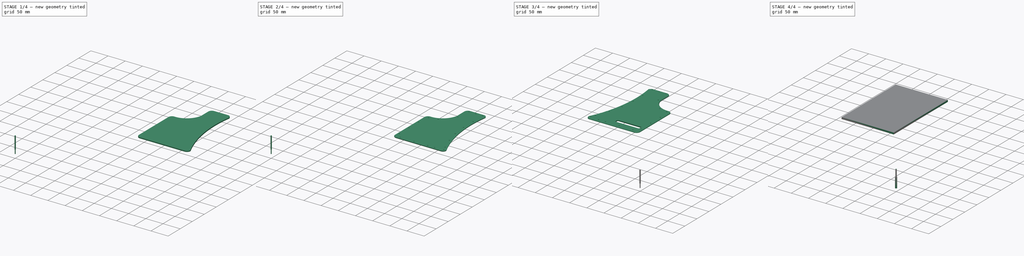
[diagram: build sequence overview — one tinted view per stage of 4, left to right]
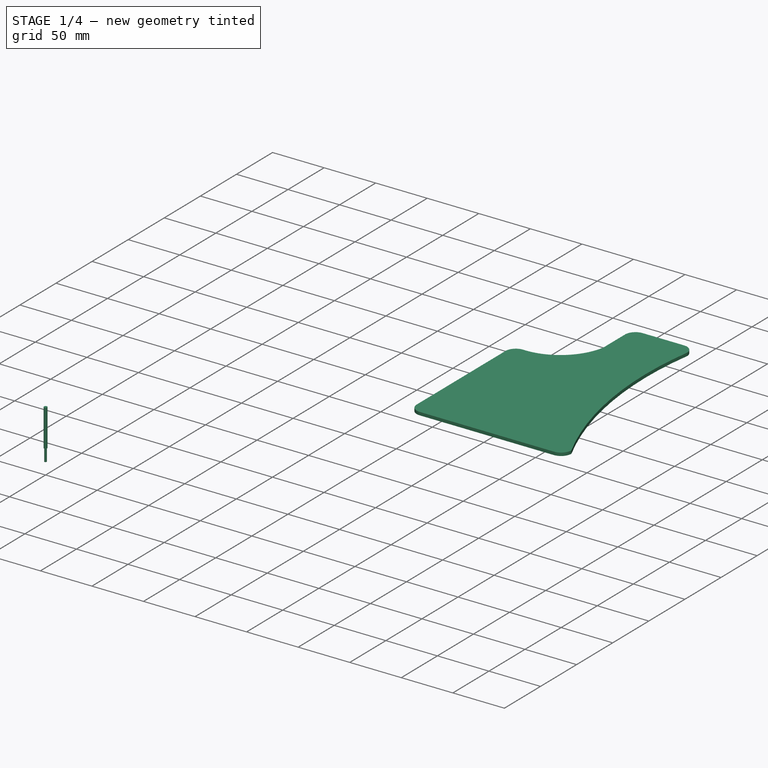
[diagram: stage 1 of 4 — iso view after this stage's code; geometry added in this stage tinted green]
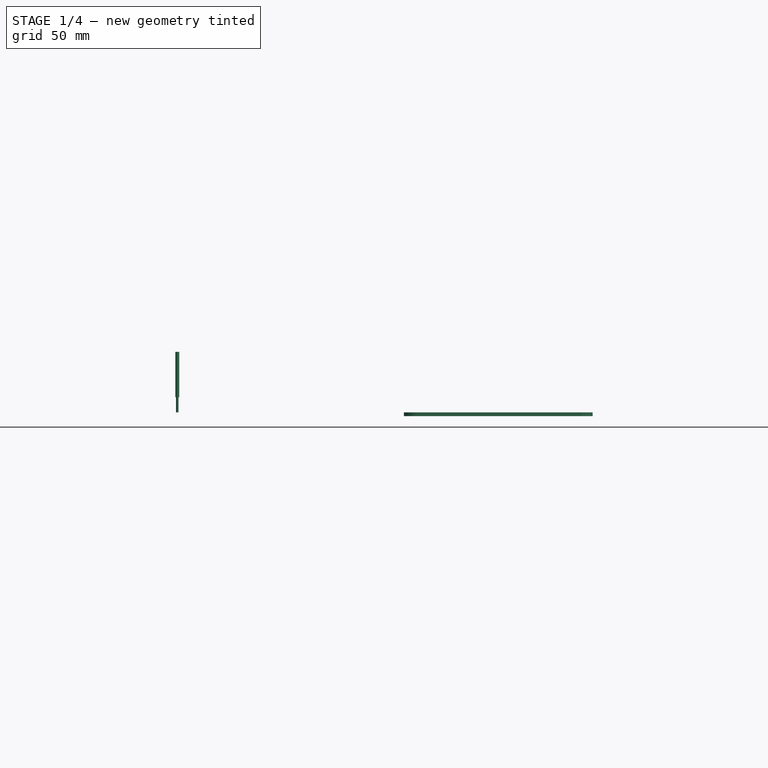
[diagram: stage 1 of 4 — front view after this stage's code; geometry added in this stage tinted green]
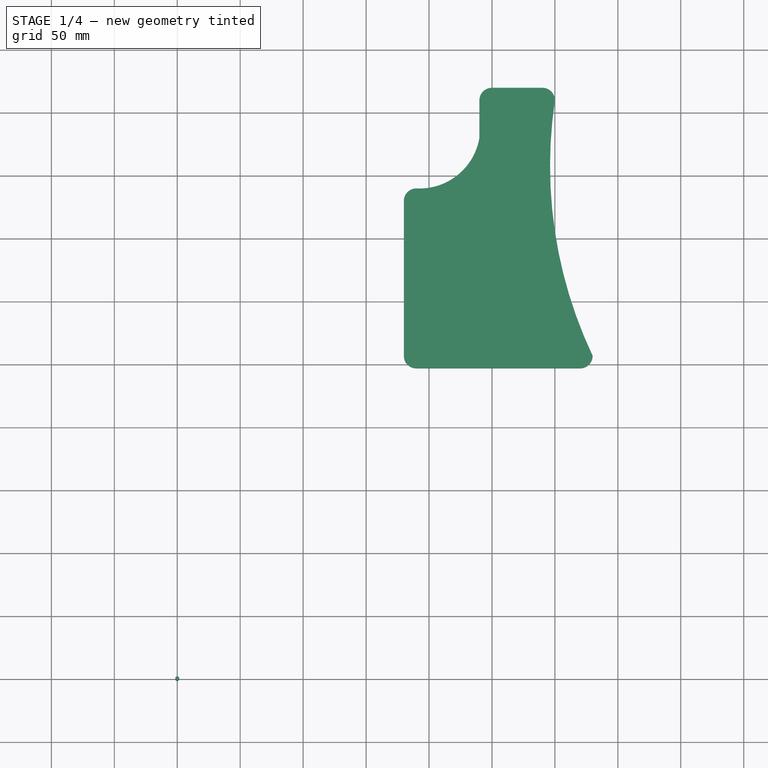
[diagram: stage 1 of 4 — top view after this stage's code; geometry added in this stage tinted green]
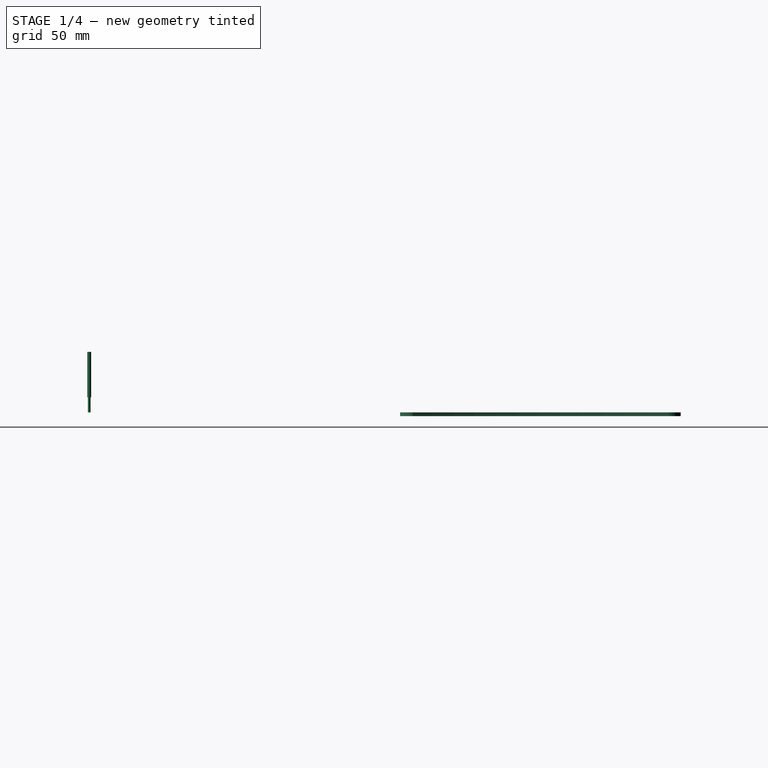
[diagram: stage 1 of 4 — right view after this stage's code; geometry added in this stage tinted green]
FCSTD DOCUMENT  (FreeCAD 0.21R33771 (Git))
Label: Back plate 1 tool path
License: All rights reserved
LicenseURL: http://en.wikipedia.org/wiki/All_rights_reserved
objects: Part::FeaturePython×4, Path::FeaturePython×4, Sketcher::SketchObject×3, App::DocumentObjectGroup×3, PartDesign::Fillet×2, PartDesign::Pocket×2, PartDesign::Pad×1, PartDesign::Body×1, App::FeaturePython×1
note: 18 computed .brp shape members not serialized (recipe doc carries the construction recipe); baked Part::Feature solids carry a one-line shape summary decoded from their .brp

FEATURE [Sketcher::SketchObject] Sketch178  label="Underside plate pocket001"
  FullyConstrained = false
  MapMode = 5
  Placement = pos=(0,0,0) rot=(1,0,0;3.14159rad)
  sketch-geometry (11):
    g0: ArcOfCircle CenterX=250 CenterY=-459.965 CenterZ=0 NormalX=0 NormalY=0 NormalZ=1 AngleXU=0 Radius=10.0011 StartAngle=3.14501 EndAngle=4.71235
    g1: ArcOfCircle CenterX=290.043 CenterY=-460 CenterZ=0 NormalX=0 NormalY=0 NormalZ=1 AngleXU=0 Radius=9.96676 StartAngle=4.70814 EndAngle=6.28304
    g2: ArcOfCircle CenterX=192.411 CenterY=-438.241 CenterZ=0 NormalX=0 NormalY=0 NormalZ=1 AngleXU=0 Radius=48.2966 StartAngle=0.171466 EndAngle=1.62074
    g3: ArcOfCircle CenterX=189.983 CenterY=-379.994 CenterZ=0 NormalX=0 NormalY=0 NormalZ=1 AngleXU=0 Radius=10.0109 StartAngle=3.14223 EndAngle=4.71402
    g4: ArcOfCircle CenterX=648.991 CenterY=-407.85 CenterZ=0 NormalX=0 NormalY=0 NormalZ=1 AngleXU=0 Radius=352.857 StartAngle=2.69985 EndAngle=3.28993
    g5: LineSegment StartX=179.972 StartY=-380 StartZ=0 EndX=179.972 EndY=-256.999 EndZ=0
    g6: ArcOfCircle CenterX=189.994 CenterY=-257.016 CenterZ=0 NormalX=0 NormalY=0 NormalZ=1 AngleXU=0 Radius=10.0214 StartAngle=1.57135 EndAngle=3.13987
    g7: ArcOfCircle CenterX=320 CenterY=-257 CenterZ=0 NormalX=0 NormalY=0 NormalZ=1 AngleXU=0 Radius=10.0052 StartAngle=0.000134912 EndAngle=1.57136
    g8: LineSegment StartX=319.994 StartY=-246.995 StartZ=0 EndX=189.988 EndY=-246.995 EndZ=0
    g9: LineSegment StartX=239.999 StartY=-430 StartZ=0 EndX=239.999 EndY=-459.999 EndZ=0
    g10: LineSegment StartX=250 StartY=-469.966 StartZ=0 EndX=290 EndY=-469.966 EndZ=0
  constraints (15):
    c: Coincident(g3,g2)
    c: Coincident(g4,g1)
    c: Coincident(g5,g3)
    c: Vertical(g5)
    c: Coincident(g6,g5)
    c: Coincident(g7,g4)
    c: Coincident(g8,g7)
    c: Coincident(g8,g6)
    c: Horizontal(g8)
    c: Coincident(g9,g2)
    c: Coincident(g9,g0)
    c: Vertical(g9)
    c: Coincident(g10,g0)
    c: Coincident(g10,g1)
    c: Horizontal(g10)
FEATURE [PartDesign::Pad] Pad010
  Direction = (0,0,-1)
  Length = 3
  Length2 = 10
  Placement = pos=(0,0,0) rot=(1,0,0;3.14159rad)
  Profile = -> Sketch178
  ReferenceAxis = -> Sketch178 [N_Axis]
  Type = 0
FEATURE [Part::FeaturePython] ToolBit001  label="2mm_Endmill"  # Path/CAM toolbit (typed FeaturePython)
  BitPropertyNames = Chipload | CuttingEdgeHeight | Diameter | Flutes | Length | Material | ShankDiameter | SpindleDirection
  BitShape = C:/Program Files/FreeCAD 0.21/Mod\Path\Tools\Shape\endmill.fcstd
  Chipload = 0
  CuttingEdgeHeight = 12
  Diameter = 2
  File = <userpath>/AppData/Roaming/FreeCAD/Macro/Bit/2mm_Endmill.fctb
  Flutes = 0
  Length = 48
  Material = 0
  ShankDiameter = 3.1
  ShapeName = endmill
  SpindleDirection = 0
FEATURE [Path::FeaturePython] _mm_Endmill  label="2mm_Endmill001"  # Path/CAM operation (typed FeaturePython)
  HorizFeed = 0
  HorizRapid = 0
  SpindleDir = 0
  SpindleSpeed = 0
  Tool = -> ToolBit001
  ToolNumber = 2
  VertFeed = 0
  VertRapid = 0
  expr: HorizRapid = SetupSheet.HorizRapid
  expr: VertRapid = SetupSheet.VertRapid
FEATURE [App::DocumentObjectGroup] Tools
  Group = -> [TC__Default_Tool,_mm_Endmill]
FEATURE [Path::FeaturePython] Helix  # Path/CAM operation (typed FeaturePython)
  Active = true
  Base = -> [Clone]
  ClearanceHeight = 9
  CoolantMode = 0
  CycleTime = Cycletime Error
  Direction = 0
  FinalDepth = 0
  OffsetExtra = 0
  OpFinalDepth = 0
  OpStartDepth = 4
  OpStockZMax = 4
  OpStockZMin = -1
  OpToolDiameter = 2
  SafeHeight = 7
  StartDepth = 4
  StartRadius = 0
  StartSide = 0
  StepDown = 2
  StepOver = 50
  ToolController = -> _mm_Endmill
  expr: ClearanceHeight = OpStockZMax + SetupSheet.ClearanceHeightOffset
  expr: FinalDepth = OpFinalDepth
  expr: SafeHeight = OpStockZMax + SetupSheet.SafeHeightOffset
  expr: StartDepth = OpStartDepth
  expr: StepDown = OpToolDiameter
FEATURE [App::DocumentObjectGroup] Operations
  Group = -> [Helix]
FEATURE [Path::FeaturePython] Job  # Path/CAM operation (typed FeaturePython)
  CycleTime = 00:00:00
  Fixtures = G54
  GeometryTolerance = 0.01
  JobType = 0
  Model = -> Model
  Operations = -> Operations
  OrderOutputBy = 0
  PostProcessor = 1
  SetupSheet = -> SetupSheet
  SplitOutput = false
  Stock = -> Stock
  Tools = -> Tools
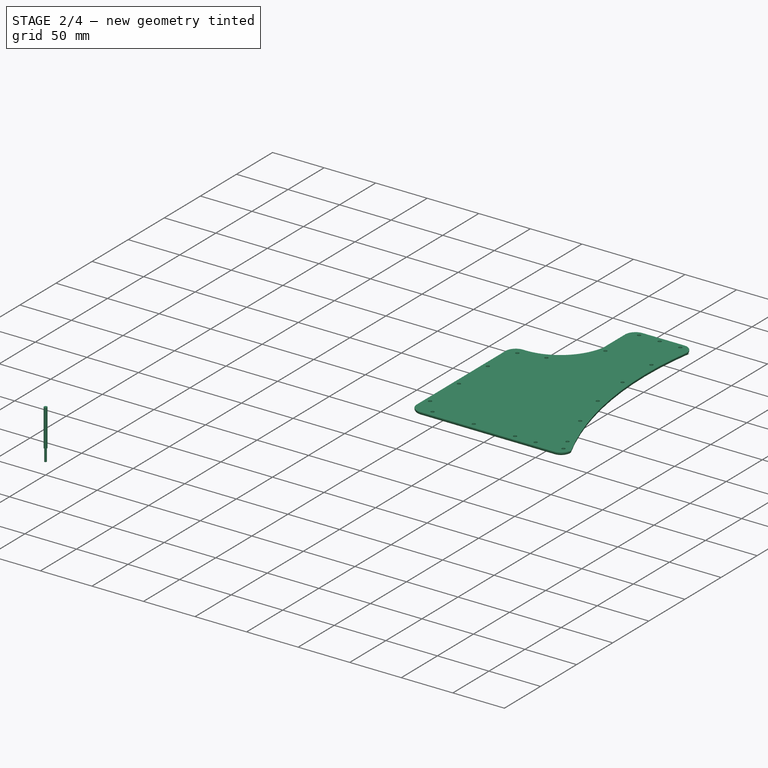
[diagram: stage 2 of 4 — iso view after this stage's code; geometry added in this stage tinted green]
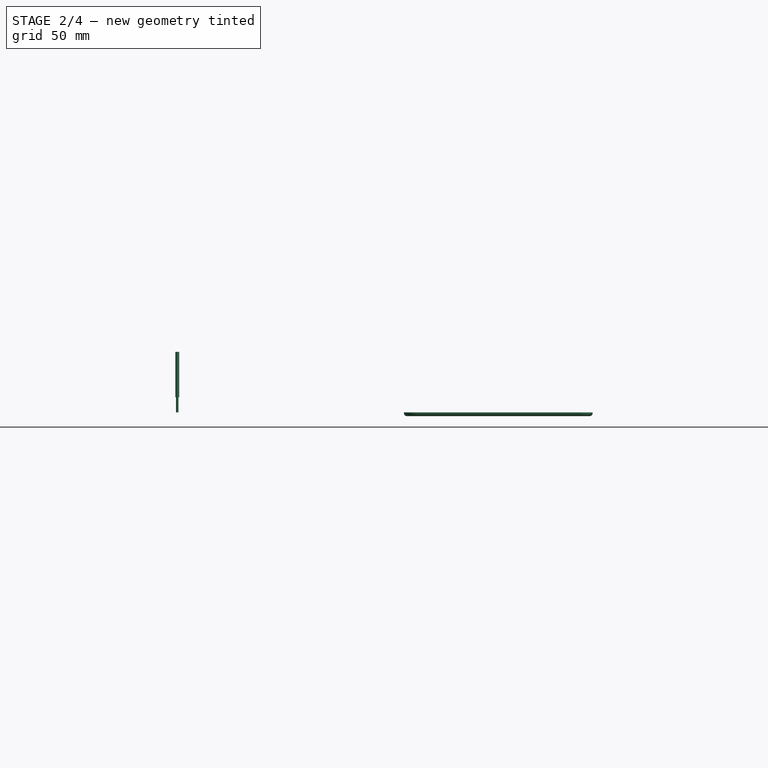
[diagram: stage 2 of 4 — front view after this stage's code; geometry added in this stage tinted green]
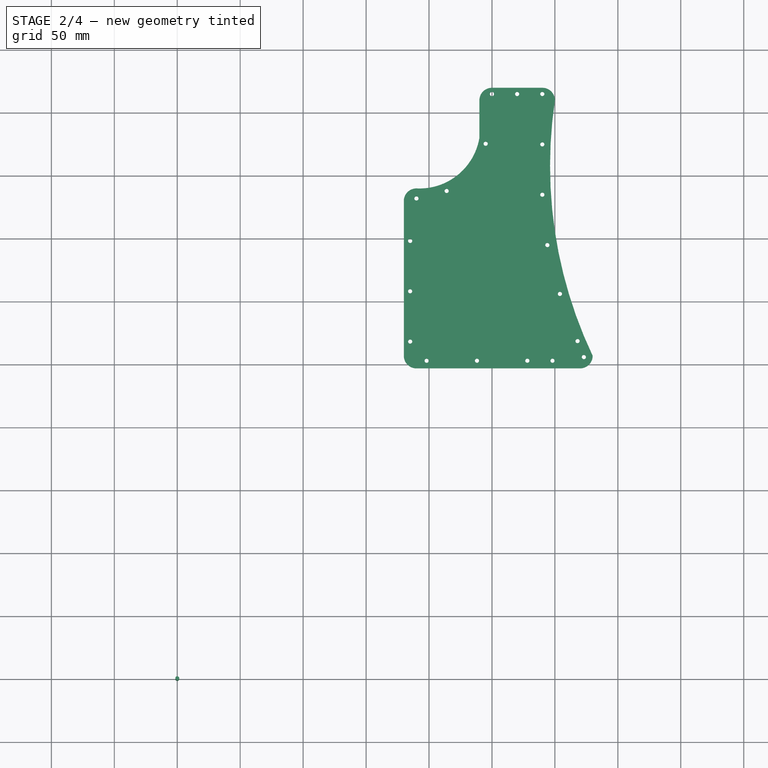
[diagram: stage 2 of 4 — top view after this stage's code; geometry added in this stage tinted green]
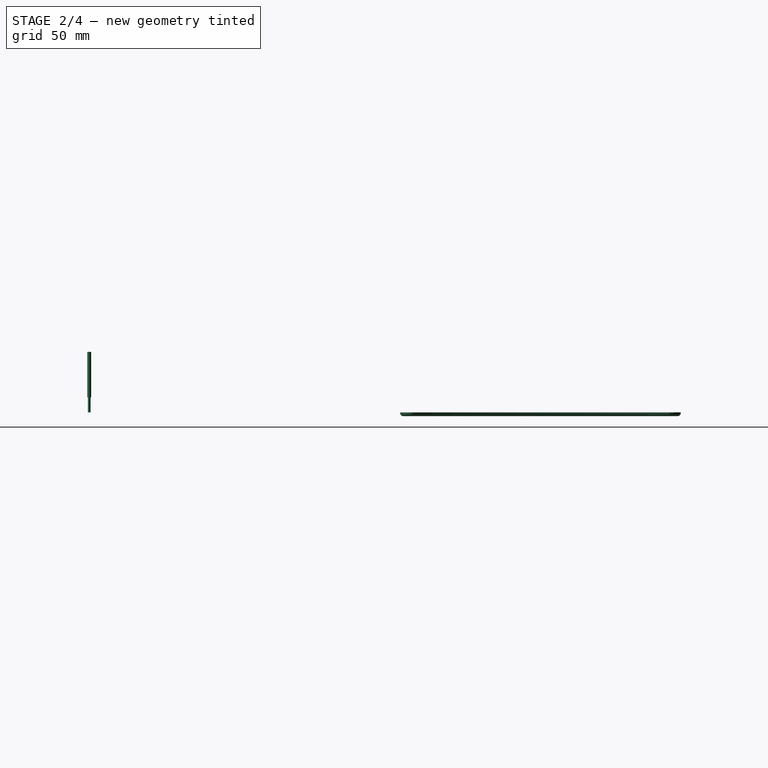
[diagram: stage 2 of 4 — right view after this stage's code; geometry added in this stage tinted green]
FEATURE [PartDesign::Fillet] Fillet033
  Base = -> Pad010 [Edge28,Edge25,Edge22,Edge19,Edge16,Edge13,Edge10,Edge7,Edge4,Edge33,Edge31]
  BaseFeature = -> Pad010
  Placement = pos=(0,0,0) rot=(1,0,0;3.14159rad)
  Radius = 2.5
  SupportTransform = false
  UseAllEdges = false
FEATURE [Sketcher::SketchObject] Sketch179
  FullyConstrained = false
  MapMode = 5
  Placement = pos=(0,0,-3) rot=(1,0,0;3.14159rad)
  Support = -> [Fillet033]
  sketch-geometry (51):
    g0: LineSegment StartX=290 StartY=-465 StartZ=0 EndX=270 EndY=-465 EndZ=0
    g1: LineSegment StartX=270 StartY=-465 StartZ=0 EndX=250 EndY=-465 EndZ=0
    g2: LineSegment StartX=250 StartY=-465 StartZ=0 EndX=245 EndY=-445.592 EndZ=0
    g3: LineSegment StartX=245 StartY=-445.592 StartZ=0 EndX=245 EndY=-425.5 EndZ=0
    g4: LineSegment StartX=245 StartY=-425.5 StartZ=0 EndX=239 EndY=-406.4 EndZ=0
    g5: LineSegment StartX=239 StartY=-406.4 StartZ=0 EndX=224.413 EndY=-392.651 EndZ=0
    g6: LineSegment StartX=290 StartY=-465 StartZ=0 EndX=288 EndY=-445 EndZ=0
    g7: LineSegment StartX=288 StartY=-445 StartZ=0 EndX=290 EndY=-425 EndZ=0
    g8: LineSegment StartX=290 StartY=-425 StartZ=0 EndX=289 EndY=-405 EndZ=0
    g9: LineSegment StartX=289 StartY=-405 StartZ=0 EndX=290 EndY=-385 EndZ=0
    g10: LineSegment StartX=290 StartY=-385 StartZ=0 EndX=292 EndY=-365 EndZ=0
    g11: LineSegment StartX=292 StartY=-365 StartZ=0 EndX=294 EndY=-345 EndZ=0
    g12: LineSegment StartX=294 StartY=-345 StartZ=0 EndX=299 EndY=-325.584 EndZ=0
    g13: LineSegment StartX=299 StartY=-325.584 StartZ=0 EndX=304 EndY=-306.2 EndZ=0
    g14: LineSegment StartX=304 StartY=-306.2 StartZ=0 EndX=310 EndY=-287.1 EndZ=0
    g15: LineSegment StartX=310 StartY=-287.1 StartZ=0 EndX=318 EndY=-268.708 EndZ=0
    g16: LineSegment StartX=318 StartY=-268.708 StartZ=0 EndX=323 EndY=-256 EndZ=0
    g17: LineSegment StartX=323 StartY=-256 StartZ=0 EndX=298.1 EndY=-253.1 EndZ=0
    g18: LineSegment StartX=298.1 StartY=-253.1 StartZ=0 EndX=278.1 EndY=-253.1 EndZ=0
    g19: LineSegment StartX=278.1 StartY=-253.1 StartZ=0 EndX=258.1 EndY=-253.1 EndZ=0
    g20: LineSegment StartX=258.1 StartY=-253.1 StartZ=0 EndX=238.1 EndY=-253.1 EndZ=0
    g21: LineSegment StartX=238.1 StartY=-253.1 StartZ=0 EndX=218.1 EndY=-253.1 EndZ=0
    g22: LineSegment StartX=218.1 StartY=-253.1 StartZ=0 EndX=198.1 EndY=-253.1 EndZ=0
    g23: LineSegment StartX=198.1 StartY=-253.1 StartZ=0 EndX=185 EndY=-268.3 EndZ=0
    g24: LineSegment StartX=185 StartY=-268.3 StartZ=0 EndX=185 EndY=-288.3 EndZ=0
    g25: LineSegment StartX=185 StartY=-288.3 StartZ=0 EndX=185 EndY=-308.3 EndZ=0
    g26: LineSegment StartX=185 StartY=-308.3 StartZ=0 EndX=185 EndY=-328.3 EndZ=0
    g27: LineSegment StartX=185 StartY=-328.3 StartZ=0 EndX=185 EndY=-348.3 EndZ=0
    g28: LineSegment StartX=185 StartY=-348.3 StartZ=0 EndX=185 EndY=-368.3 EndZ=0
    g29: LineSegment StartX=185 StartY=-368.3 StartZ=0 EndX=190 EndY=-382 EndZ=0
    g30: LineSegment StartX=190 StartY=-382 StartZ=0 EndX=214 EndY=-388 EndZ=0
    g31: LineSegment StartX=214 StartY=-388 StartZ=0 EndX=224.413 EndY=-392.651 EndZ=0
    g32: Circle CenterX=290 CenterY=-465 CenterZ=0 NormalX=0 NormalY=0 NormalZ=1 AngleXU=0 Radius=1.65
    g33: Circle CenterX=270 CenterY=-465 CenterZ=0 NormalX=0 NormalY=0 NormalZ=1 AngleXU=0 Radius=1.65
    g34: Circle CenterX=250 CenterY=-465 CenterZ=0 NormalX=0 NormalY=0 NormalZ=1 AngleXU=0 Radius=1.65
    g35: Circle CenterX=245 CenterY=-425.5 CenterZ=0 NormalX=0 NormalY=0 NormalZ=1 AngleXU=0 Radius=1.65
    g36: Circle CenterX=214 CenterY=-388 CenterZ=0 NormalX=0 NormalY=0 NormalZ=1 AngleXU=0 Radius=1.65
    g37: Circle CenterX=190 CenterY=-382 CenterZ=0 NormalX=0 NormalY=0 NormalZ=1 AngleXU=0 Radius=1.65
    g38: Circle CenterX=185 CenterY=-348.3 CenterZ=0 NormalX=0 NormalY=0 NormalZ=1 AngleXU=0 Radius=1.65
    g39: Circle CenterX=185 CenterY=-308.3 CenterZ=0 NormalX=0 NormalY=0 NormalZ=1 AngleXU=0 Radius=1.65
    g40: Circle CenterX=185 CenterY=-268.3 CenterZ=0 NormalX=0 NormalY=0 NormalZ=1 AngleXU=0 Radius=1.65
    g41: Circle CenterX=198.1 CenterY=-253.1 CenterZ=0 NormalX=0 NormalY=0 NormalZ=1 AngleXU=0 Radius=1.65
    g42: Circle CenterX=238.1 CenterY=-253.1 CenterZ=0 NormalX=0 NormalY=0 NormalZ=1 AngleXU=0 Radius=1.65
    g43: Circle CenterX=278.1 CenterY=-253.1 CenterZ=0 NormalX=0 NormalY=0 NormalZ=1 AngleXU=0 Radius=1.65
    g44: Circle CenterX=298.1 CenterY=-253.1 CenterZ=0 NormalX=0 NormalY=0 NormalZ=1 AngleXU=0 Radius=1.65
    g45: Circle CenterX=323 CenterY=-256 CenterZ=0 NormalX=0 NormalY=0 NormalZ=1 AngleXU=0 Radius=1.65
    g46: Circle CenterX=318 CenterY=-268.708 CenterZ=0 NormalX=0 NormalY=0 NormalZ=1 AngleXU=0 Radius=1.65
    g47: Circle CenterX=304 CenterY=-306.2 CenterZ=0 NormalX=0 NormalY=0 NormalZ=1 AngleXU=0 Radius=1.65
    g48: Circle CenterX=294 CenterY=-345 CenterZ=0 NormalX=0 NormalY=0 NormalZ=1 AngleXU=0 Radius=1.65
    g49: Circle CenterX=290 CenterY=-385 CenterZ=0 NormalX=0 NormalY=0 NormalZ=1 AngleXU=0 Radius=1.65
    g50: Circle CenterX=290 CenterY=-425 CenterZ=0 NormalX=0 NormalY=0 NormalZ=1 AngleXU=0 Radius=1.65
  constraints (66):
    c: Horizontal(g0)
    c: Coincident(g1,g0)
    c: Horizontal(g1)
    c: Coincident(g2,g1)
    c: Coincident(g3,g2)
    c: Vertical(g3)
    c: Coincident(g4,g3)
    c: Coincident(g4,g5)
    c: Coincident(g0,g6)
    c: Coincident(g6,g7)
    c: Coincident(g7,g8)
    c: Coincident(g8,g9)
    c: Coincident(g9,g10)
    c: Coincident(g10,g11)
    c: Coincident(g11,g12)
    c: Coincident(g12,g13)
    c: Coincident(g13,g14)
    c: Coincident(g14,g15)
    c: Coincident(g15,g16)
    c: Coincident(g16,g17)
    c: Coincident(g17,g18)
    c: Horizontal(g18)
    c: Coincident(g18,g19)
    c: Horizontal(g19)
    c: Coincident(g19,g20)
    c: Horizontal(g20)
    c: Coincident(g20,g21)
    c: Horizontal(g21)
    c: Coincident(g21,g22)
    c: Horizontal(g22)
    c: Coincident(g22,g23)
    c: Coincident(g23,g24)
    c: Vertical(g24)
    c: Coincident(g24,g25)
    c: Vertical(g25)
    c: Coincident(g25,g26)
    c: Vertical(g26)
    c: Coincident(g26,g27)
    c: Vertical(g27)
    c: Coincident(g27,g28)
    c: Vertical(g28)
    c: Coincident(g28,g29)
    c: Coincident(g29,g30)
    c: Coincident(g30,g31)
    c: Coincident(g31,g5)
    c: Coincident(g32,g0)
    c: Coincident(g33,g0)
    c: Coincident(g34,g1)
    c: Coincident(g35,g3)
    c: Coincident(g36,g30)
    c: Coincident(g37,g29)
    c: Coincident(g38,g27)
    c: Coincident(g39,g25)
    c: Coincident(g40,g23)
    c: Coincident(g41,g22)
    c: Coincident(g42,g20)
    c: Coincident(g43,g18)
    c: Coincident(g44,g17)
    c: Coincident(g45,g16)
    c: Coincident(g46,g15)
    c: Coincident(g47,g13)
    c: Coincident(g48,g11)
    c: Coincident(g49,g9)
    c: Coincident(g50,g7)
    c: Equal(g32, g33-g50) x18
    c: Diameter(g32) = 3.3
FEATURE [PartDesign::Pocket] Pocket050
  BaseFeature = -> Fillet033
  Direction = (0,-1e-16,1)
  Length = 3
  Length2 = 5
  Placement = pos=(0,0,0) rot=(1,0,0;3.14159rad)
  Profile = -> Sketch179
  ReferenceAxis = -> Sketch179 [N_Axis]
  Type = 0
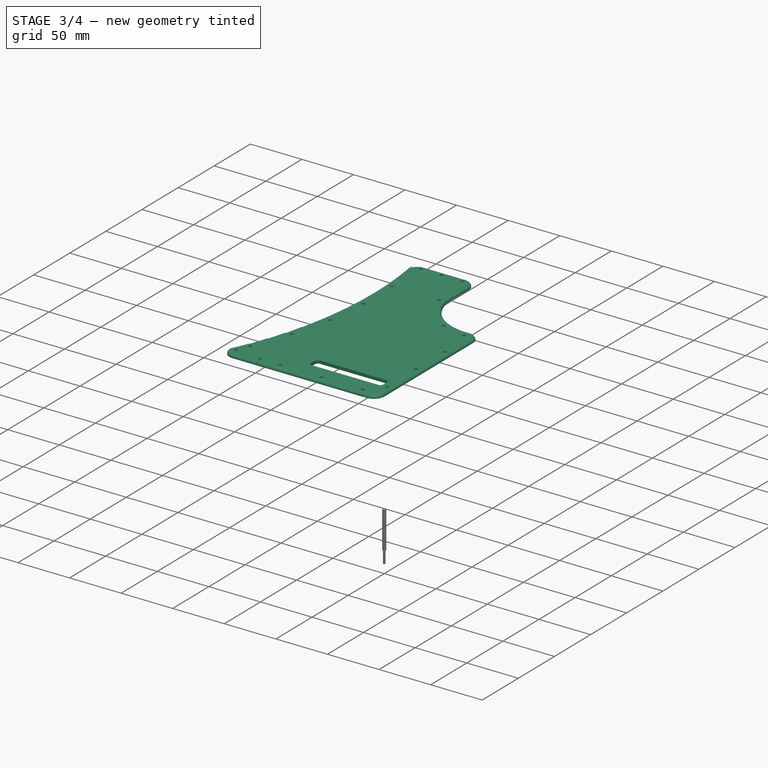
[diagram: stage 3 of 4 — iso view after this stage's code; geometry added in this stage tinted green]
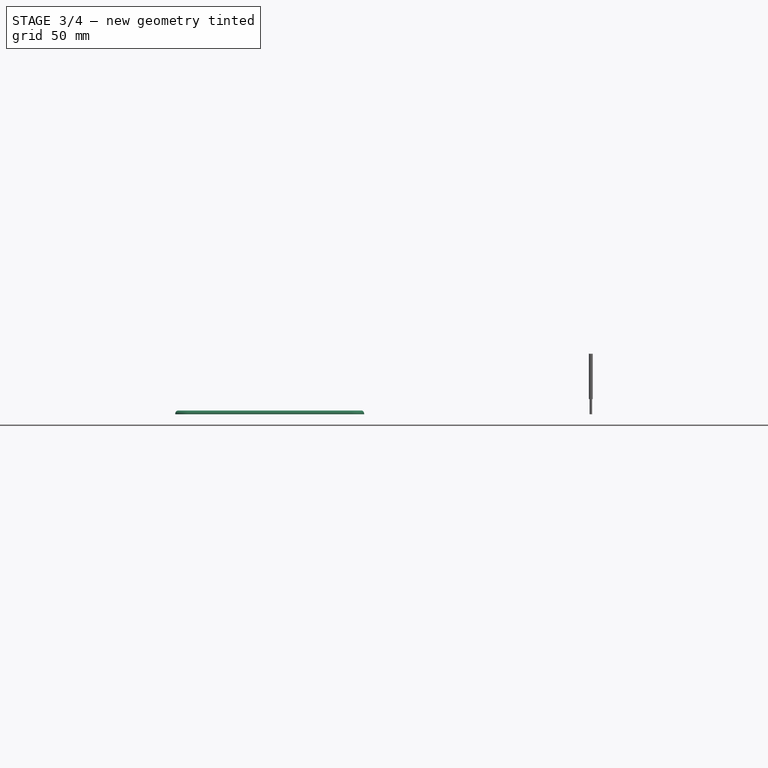
[diagram: stage 3 of 4 — front view after this stage's code; geometry added in this stage tinted green]
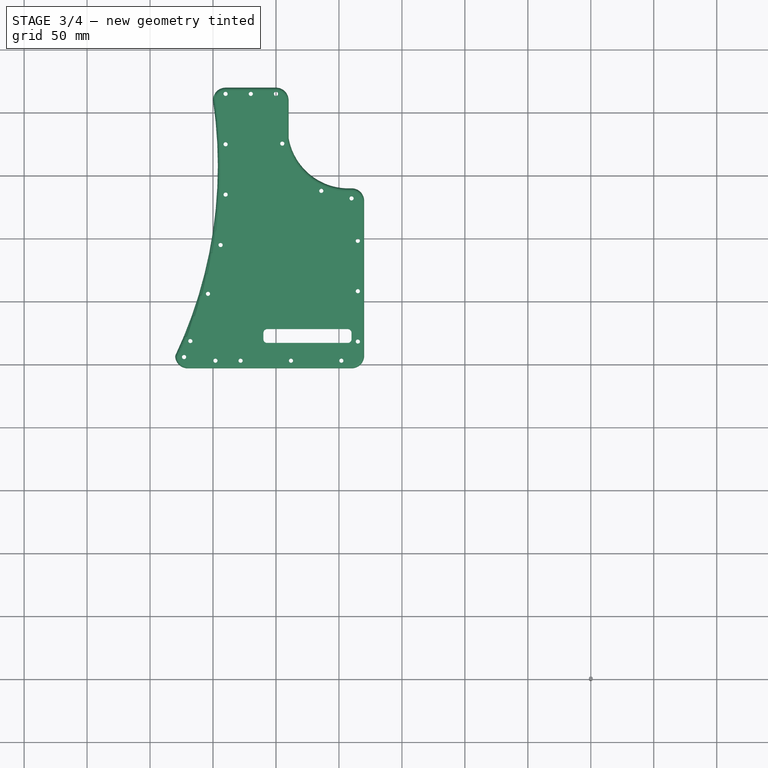
[diagram: stage 3 of 4 — top view after this stage's code; geometry added in this stage tinted green]
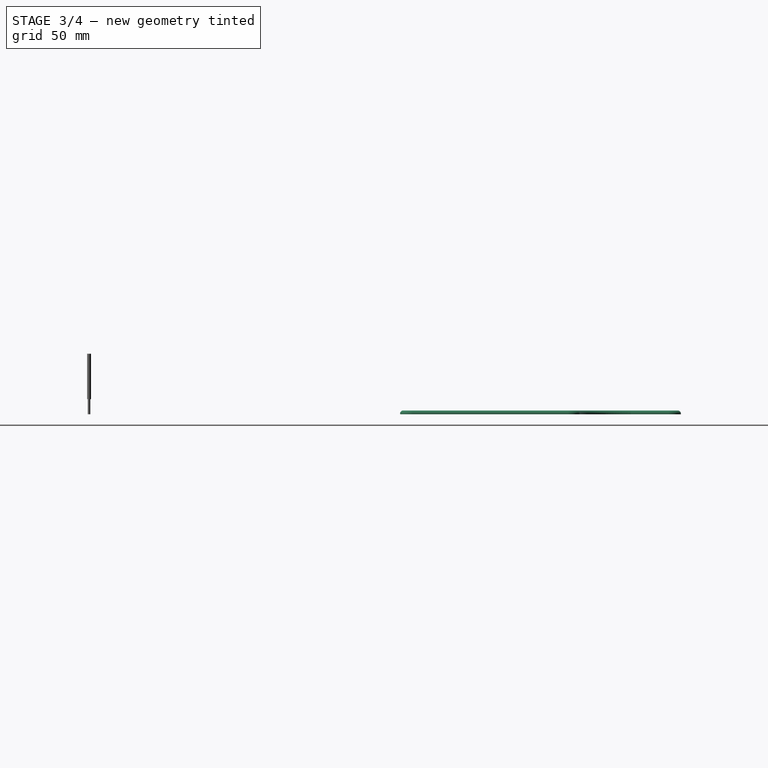
[diagram: stage 3 of 4 — right view after this stage's code; geometry added in this stage tinted green]
FEATURE [Sketcher::SketchObject] Sketch181
  FullyConstrained = false
  MapMode = 5
  Placement = pos=(0,0,-3) rot=(1,0,0;3.14159rad)
  Support = -> [Pocket050]
  sketch-geometry (4):
    g0: LineSegment StartX=190 StartY=-267.2 StartZ=0 EndX=260 EndY=-267.2 EndZ=0
    g1: LineSegment StartX=260 StartY=-267.2 StartZ=0 EndX=260 EndY=-278.2 EndZ=0
    g2: LineSegment StartX=260 StartY=-278.2 StartZ=0 EndX=190 EndY=-278.2 EndZ=0
    g3: LineSegment StartX=190 StartY=-278.2 StartZ=0 EndX=190 EndY=-267.2 EndZ=0
  constraints (10):
    c: Coincident(g0,g1)
    c: Coincident(g1,g2)
    c: Coincident(g2,g3)
    c: Coincident(g3,g0)
    c: Horizontal(g0)
    c: Horizontal(g2)
    c: Vertical(g1)
    c: Vertical(g3)
    c: DistanceX(g0,g0) = 70
    c: DistanceY(g1,g1) = 11
FEATURE [PartDesign::Pocket] Pocket051
  BaseFeature = -> Pocket050
  Direction = (0,-2e-16,1)
  Length = 3
  Length2 = 5
  Placement = pos=(0,0,0) rot=(1,0,0;3.14159rad)
  Profile = -> Sketch181
  ReferenceAxis = -> Sketch181 [N_Axis]
  Type = 0
FEATURE [PartDesign::Fillet] Fillet034
  Base = -> Pocket051 [Edge99,Edge98,Edge97,Edge100]
  BaseFeature = -> Pocket051
  Placement = pos=(0,0,0) rot=(1,0,0;3.14159rad)
  Radius = 3
  SupportTransform = false
  UseAllEdges = false
FEATURE [PartDesign::Body] Body022  label="Back Plate 1"
  Group = -> [Sketch178,Pad010,Fillet033,Sketch179,Pocket050,Sketch181,Pocket051,Fillet034]
  Origin = -> Origin191
  Placement = pos=(0,0,0) rot=(0,-1,0;3.14159rad)
  Tip = -> Fillet034
FEATURE [App::FeaturePython] SetupSheet  # Path/CAM operation (typed FeaturePython)
  ClearanceHeightExpression = OpStockZMax+SetupSheet.ClearanceHeightOffset
  ClearanceHeightOffset = 5
  CoolantMode = 0
  CoolantModes = None | Flood | Mist
  FinalDepthExpression = OpFinalDepth
  HorizRapid = 0
  SafeHeightExpression = OpStockZMax+SetupSheet.SafeHeightOffset
  SafeHeightOffset = 3
  StartDepthExpression = OpStartDepth
  StepDownExpression = OpToolDiameter
  VertRapid = 0
FEATURE [Part::FeaturePython] Clone  label="Model-Back Plate 1"  # Draft clone (typed FeaturePython)
  AttacherType = Attacher::AttachEngine3D
  Fuse = false
  Objects = -> [Body022]
  PathResource = Model
  Placement = pos=(0,0,0) rot=(0,-1,0;3.14159rad)
  Scale = (1,1,1)
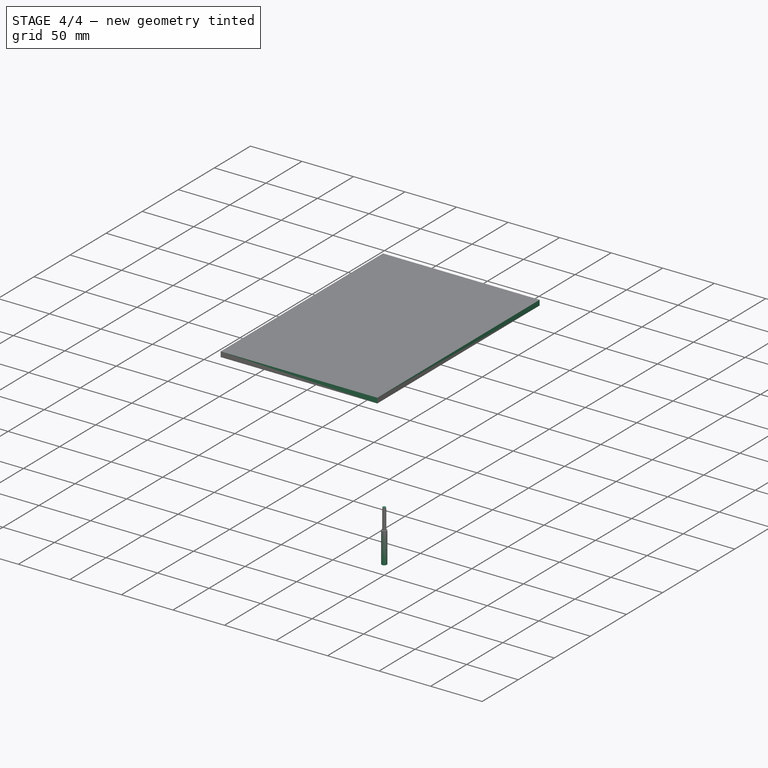
[diagram: stage 4 of 4 — iso view after this stage's code; geometry added in this stage tinted green]
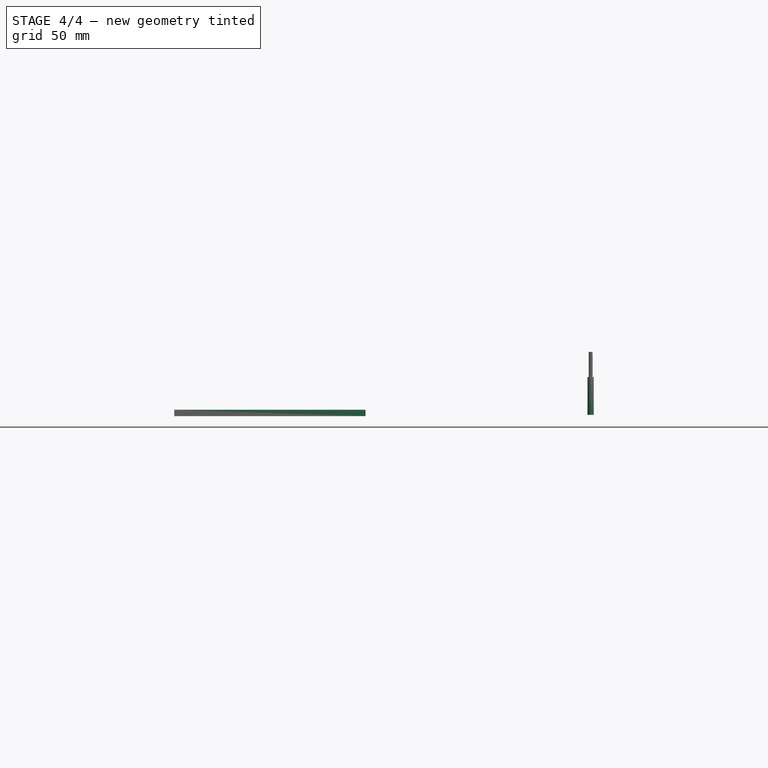
[diagram: stage 4 of 4 — front view after this stage's code; geometry added in this stage tinted green]
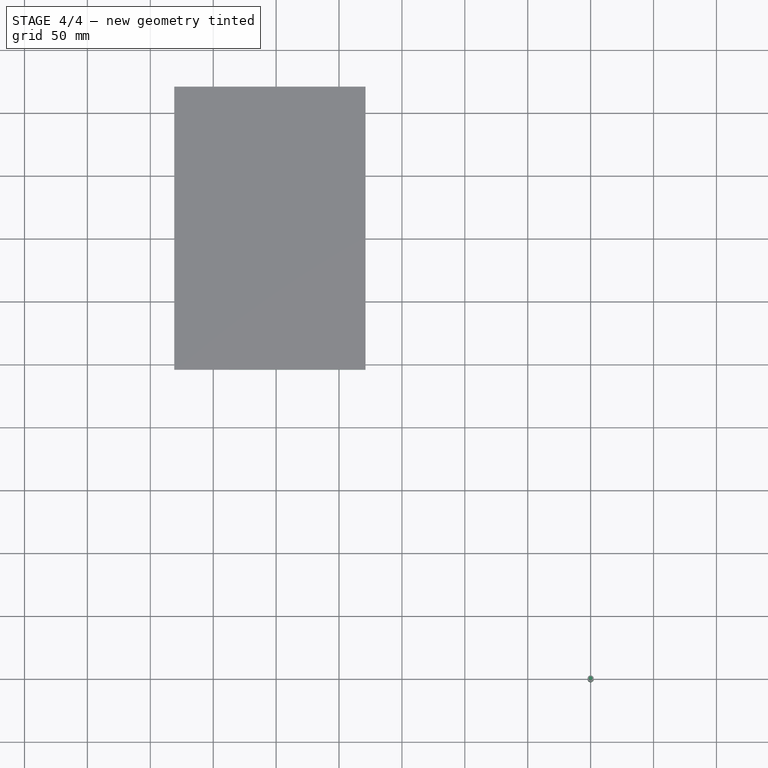
[diagram: stage 4 of 4 — top view after this stage's code; geometry added in this stage tinted green]
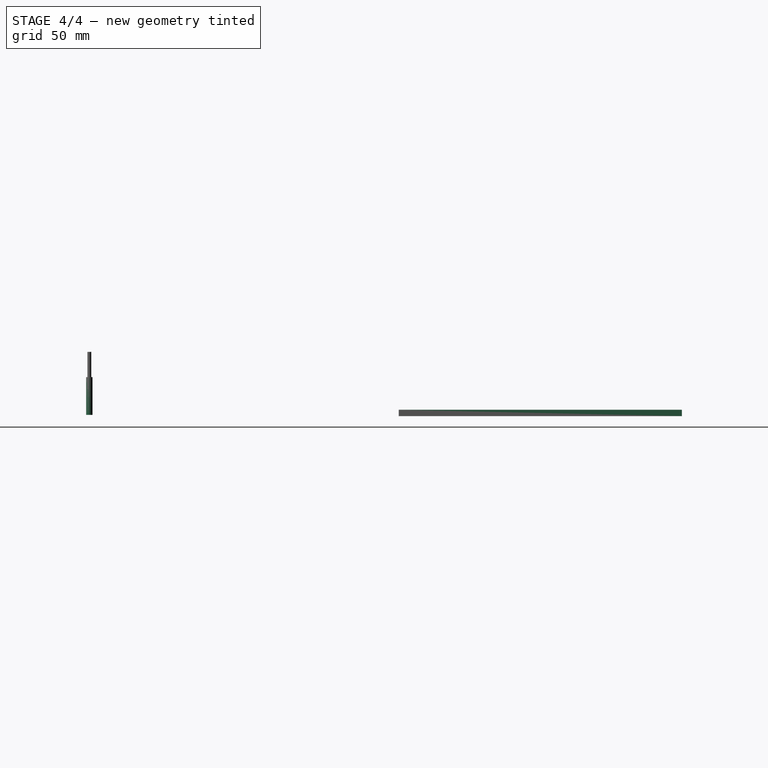
[diagram: stage 4 of 4 — right view after this stage's code; geometry added in this stage tinted green]
FEATURE [App::DocumentObjectGroup] Model
  Group = -> [Clone]
FEATURE [Part::FeaturePython] ToolBit  label="Endmill"  # Path/CAM toolbit (typed FeaturePython)
  BitPropertyNames = Chipload | CuttingEdgeHeight | Diameter | Flutes | Length | Material | ShankDiameter | SpindleDirection
  BitShape = C:/Program Files/FreeCAD 0.21/Mod\Path\Tools\Shape\endmill.fcstd
  Chipload = 0
  CuttingEdgeHeight = 30
  Diameter = 5
  Flutes = 0
  Length = 50
  Material = 0
  ShankDiameter = 3
  ShapeName = endmill
  SpindleDirection = 0
FEATURE [Path::FeaturePython] TC__Default_Tool  label="TC: Default Tool"  # Path/CAM operation (typed FeaturePython)
  HorizFeed = 0
  HorizRapid = 0
  SpindleDir = 0
  SpindleSpeed = 0
  Tool = -> ToolBit
  ToolNumber = 1
  VertFeed = 0
  VertRapid = 0
  expr: HorizRapid = SetupSheet.HorizRapid
  expr: VertRapid = SetupSheet.VertRapid
FEATURE [Part::FeaturePython] Stock  # WARN: FeaturePython — macro-defined, semantics opaque (R4)
  Base = -> Model
  ExtXneg = 1
  ExtXpos = 1
  ExtYneg = 1
  ExtYpos = 1
  ExtZneg = 1
  ExtZpos = 1
  Placement = pos=(-330.005,246.995,-3.022e-13) rot=(0,0,1;0rad)
  StockType = FromBase
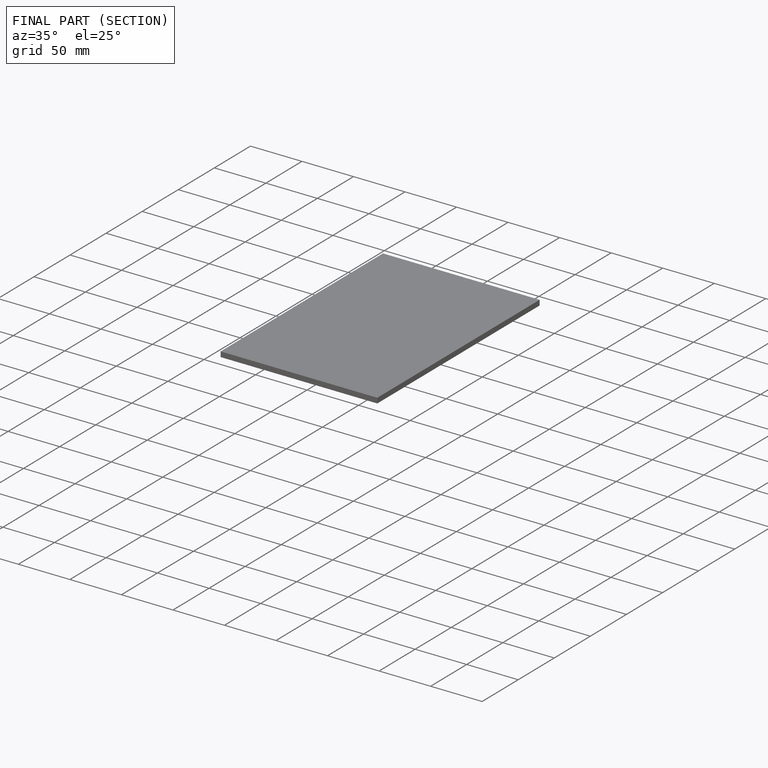
[diagram: finished part — half-section view (interior)]
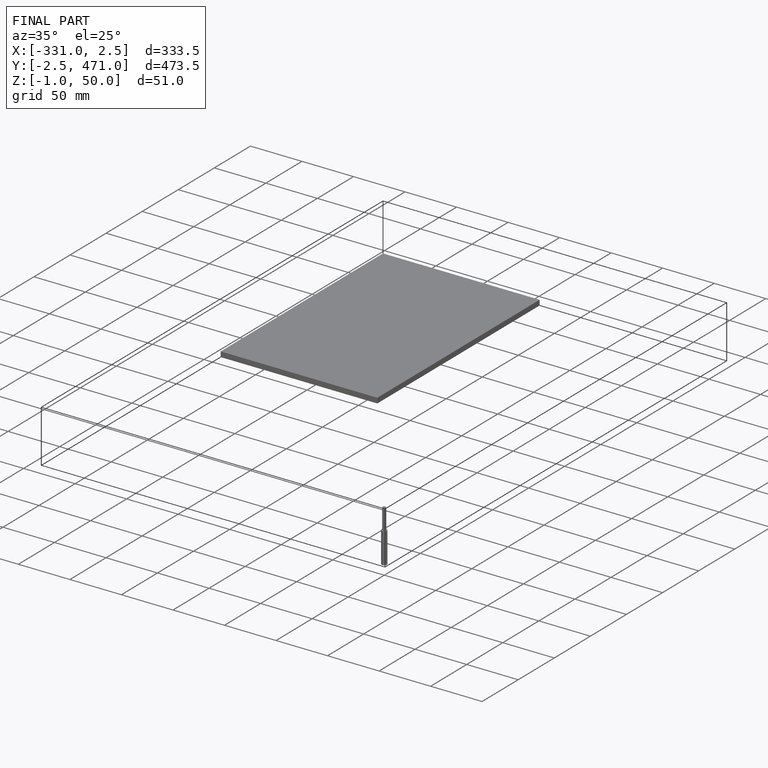
[diagram: finished part — iso view with bounding-box wireframe]
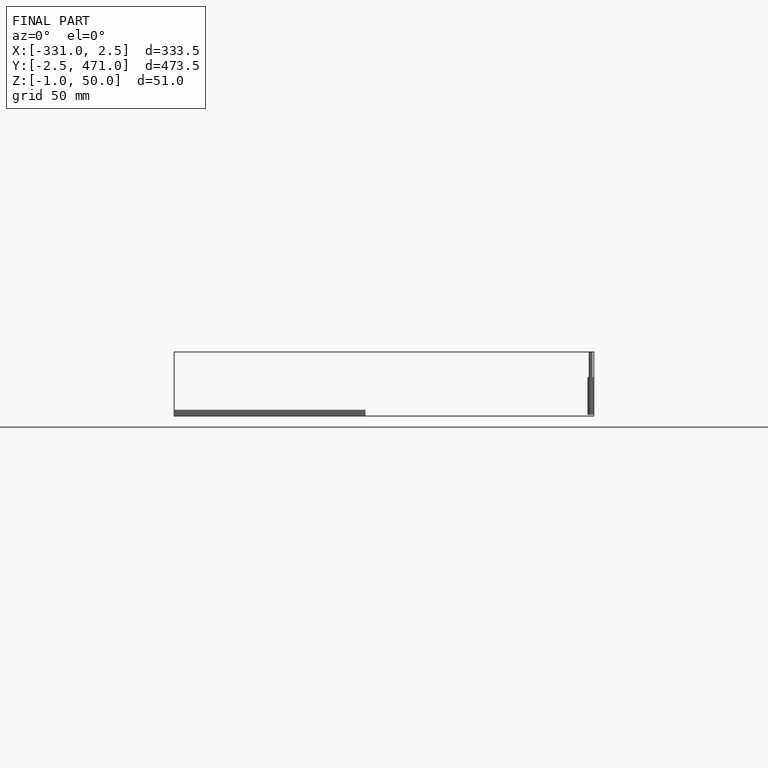
[diagram: finished part — front view with bounding-box wireframe]
